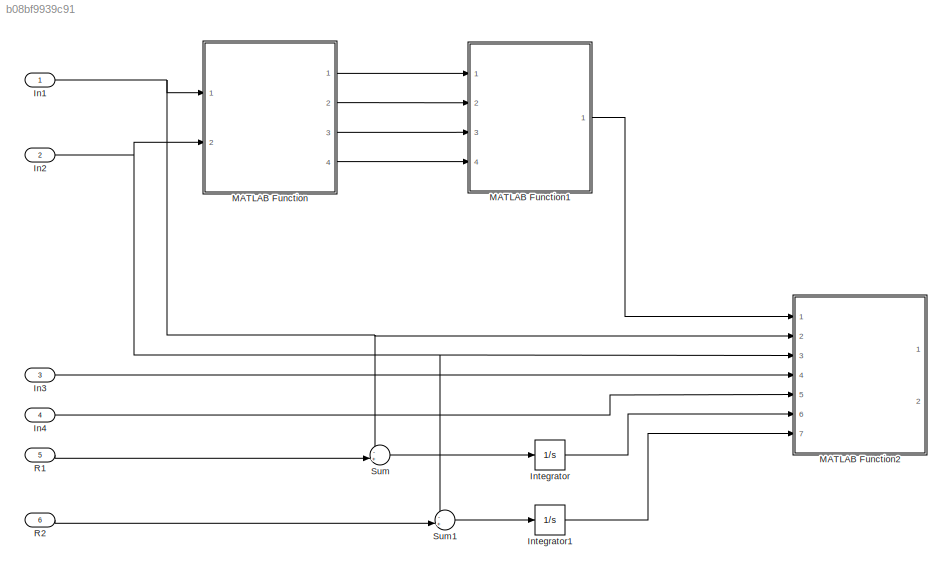
MODEL slx_b08bf9939c91
KIND model
BLOCK [Inport] In1
  IconDisplay = Port number
BLOCK [Inport] In2
  IconDisplay = Port number
  Port = 2
BLOCK [Inport] In3
  IconDisplay = Port number
  Port = 3
BLOCK [Inport] In4
  IconDisplay = Port number
  Port = 4
BLOCK [Integrator] Integrator
  Ports = [1, 1]
BLOCK [Integrator] Integrator1
  Ports = [1, 1]
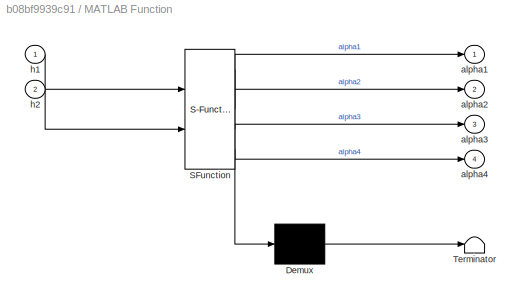
BLOCK [SubSystem] MATLAB Function
  ErrorFcn = Stateflow.Translate.translate
  FunctionWithSeparateData = off
  MaskHideContents = off
  MinAlgLoopOccurrences = off
  Opaque = off
  PermitHierarchicalResolution = ExplicitOnly
  Ports = [2, 4]
  PropExecContextOutsideSubsystem = off
  RTWSystemCode = Auto
  RequestExecContextInheritance = off
  SFBlockType = MATLAB Function
  TreatAsAtomicUnit = on
BLOCK [Demux] MATLAB Function/ Demux 
  Outputs = 1
  Ports = [1, 1]
BLOCK [S-Function] MATLAB Function/ SFunction 
  EnableBusSupport = on
  FunctionName = sf_sfun
  PortCounts = [2 5]
  Ports = [2, 5]
  Tag = Stateflow S-Function modelo_final 2
BLOCK [Terminator] MATLAB Function/ Terminator 
BLOCK [Outport] MATLAB Function/alpha1
  IconDisplay = Port number
BLOCK [Outport] MATLAB Function/alpha2
  IconDisplay = Port number
  Port = 2
BLOCK [Outport] MATLAB Function/alpha3
  IconDisplay = Port number
  Port = 3
BLOCK [Outport] MATLAB Function/alpha4
  IconDisplay = Port number
  Port = 4
BLOCK [Inport] MATLAB Function/h1
  IconDisplay = Port number
BLOCK [Inport] MATLAB Function/h2
  IconDisplay = Port number
  Port = 2
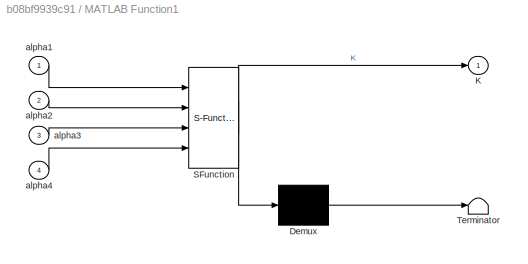
BLOCK [SubSystem] MATLAB Function1
  ErrorFcn = Stateflow.Translate.translate
  FunctionWithSeparateData = off
  MaskHideContents = off
  MinAlgLoopOccurrences = off
  Opaque = off
  PermitHierarchicalResolution = ExplicitOnly
  Ports = [4, 1]
  PropExecContextOutsideSubsystem = off
  RTWSystemCode = Auto
  RequestExecContextInheritance = off
  SFBlockType = MATLAB Function
  TreatAsAtomicUnit = on
BLOCK [Demux] MATLAB Function1/ Demux 
  Outputs = 1
  Ports = [1, 1]
BLOCK [S-Function] MATLAB Function1/ SFunction 
  EnableBusSupport = on
  FunctionName = sf_sfun
  PortCounts = [4 2]
  Ports = [4, 2]
  Tag = Stateflow S-Function modelo_final 1
BLOCK [Terminator] MATLAB Function1/ Terminator 
BLOCK [Outport] MATLAB Function1/K
  IconDisplay = Port number
BLOCK [Inport] MATLAB Function1/alpha1
  IconDisplay = Port number
BLOCK [Inport] MATLAB Function1/alpha2
  IconDisplay = Port number
  Port = 2
BLOCK [Inport] MATLAB Function1/alpha3
  IconDisplay = Port number
  Port = 3
BLOCK [Inport] MATLAB Function1/alpha4
  IconDisplay = Port number
  Port = 4
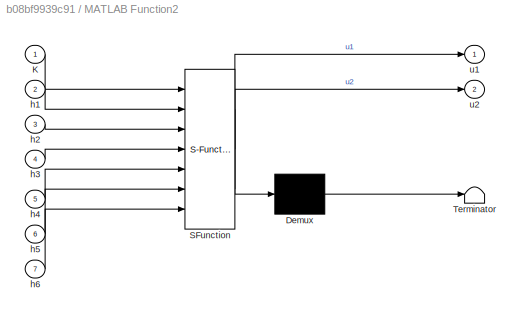
BLOCK [SubSystem] MATLAB Function2
  ErrorFcn = Stateflow.Translate.translate
  FunctionWithSeparateData = off
  MaskHideContents = off
  MinAlgLoopOccurrences = off
  Opaque = off
  PermitHierarchicalResolution = ExplicitOnly
  Ports = [7, 2]
  PropExecContextOutsideSubsystem = off
  RTWSystemCode = Auto
  RequestExecContextInheritance = off
  SFBlockType = MATLAB Function
  TreatAsAtomicUnit = on
BLOCK [Demux] MATLAB Function2/ Demux 
  Outputs = 1
  Ports = [1, 1]
BLOCK [S-Function] MATLAB Function2/ SFunction 
  EnableBusSupport = on
  FunctionName = sf_sfun
  PortCounts = [7 3]
  Ports = [7, 3]
  Tag = Stateflow S-Function modelo_final 3
BLOCK [Terminator] MATLAB Function2/ Terminator 
BLOCK [Inport] MATLAB Function2/K
  IconDisplay = Port number
BLOCK [Inport] MATLAB Function2/h1
  IconDisplay = Port number
  Port = 2
BLOCK [Inport] MATLAB Function2/h2
  IconDisplay = Port number
  Port = 3
BLOCK [Inport] MATLAB Function2/h3
  IconDisplay = Port number
  Port = 4
BLOCK [Inport] MATLAB Function2/h4
  IconDisplay = Port number
  Port = 5
BLOCK [Inport] MATLAB Function2/h5
  IconDisplay = Port number
  Port = 6
BLOCK [Inport] MATLAB Function2/h6
  IconDisplay = Port number
  Port = 7
BLOCK [Outport] MATLAB Function2/u1
  IconDisplay = Port number
BLOCK [Outport] MATLAB Function2/u2
  IconDisplay = Port number
  Port = 2
BLOCK [Inport] R1
  IconDisplay = Port number
  Port = 5
BLOCK [Inport] R2
  IconDisplay = Port number
  Port = 6
BLOCK [Sum] Sum
  IconShape = round
  InputSameDT = off
  Inputs = -+|
  OutDataTypeStr = Inherit: Inherit via internal rule
  Ports = [2, 1]
  SaturateOnIntegerOverflow = off
BLOCK [Sum] Sum1
  IconShape = round
  InputSameDT = off
  Inputs = -+|
  OutDataTypeStr = Inherit: Inherit via internal rule
  Ports = [2, 1]
  SaturateOnIntegerOverflow = off
NET In1:1 -> MATLAB Function2:2, MATLAB Function:1, Sum:1
NET In2:1 -> MATLAB Function2:3, MATLAB Function:2, Sum1:1
LINE In3:1 -> MATLAB Function2:4
LINE In4:1 -> MATLAB Function2:5
LINE Integrator1:1 -> MATLAB Function2:7
LINE Integrator:1 -> MATLAB Function2:6
LINE MATLAB Function1:1 -> MATLAB Function2:1
LINE MATLAB Function:1 -> MATLAB Function1:1
LINE MATLAB Function:2 -> MATLAB Function1:2
LINE MATLAB Function:3 -> MATLAB Function1:3
LINE MATLAB Function:4 -> MATLAB Function1:4
LINE R1:1 -> Sum:2
LINE R2:1 -> Sum1:2
LINE Sum1:1 -> Integrator1:1
LINE Sum:1 -> Integrator:1
note: NET lines group one-source signal fan-out (src -> all destinations, sorted); 1:1 wires keep LINE
